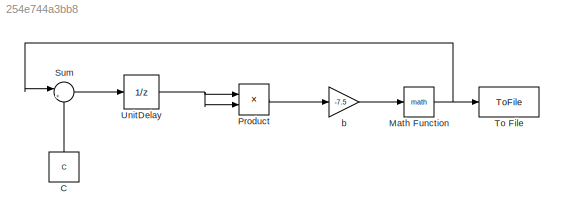
MODEL slx_254e744a3bb8
KIND model
CONFIG AbsTol = auto
CONFIG EnableMultiTasking = on
CONFIG FixedStep = 1e-03
CONFIG MaxStep = auto
CONFIG MinStep = auto
CONFIG RelTol = 1e-3
CONFIG SampleTimeConstraint = Unconstrained
CONFIG SolverName = ode3
CONFIG StartTime = 0.0
CONFIG StopTime = 50
BLOCK [Constant] C
  NameLocation = right
  Value = C
BLOCK [Math] Math Function
  Ports = [1, 1]
BLOCK [Product] Product
  Ports = [2, 1]
BLOCK [Sum] Sum
  Inputs = |++
  Ports = [2, 1]
BLOCK [ToFile] To File
  Filename = X.mat
  MatrixName = X
  Ports = [1]
BLOCK [UnitDelay] UnitDelay
  HasFrameUpgradeWarning = on
  InitialCondition = 0.7
  SampleTime = 0.001
BLOCK [Gain] b
  Gain = -7.5
LINE C:1 -> Sum:2
NET Math Function:1 -> Sum:1, To File:1
LINE Product:1 -> b:1
LINE Sum:1 -> UnitDelay:1
NET UnitDelay:1 -> Product:1, Product:2
LINE b:1 -> Math Function:1
note: NET lines group one-source signal fan-out (src -> all destinations, sorted); 1:1 wires keep LINE
